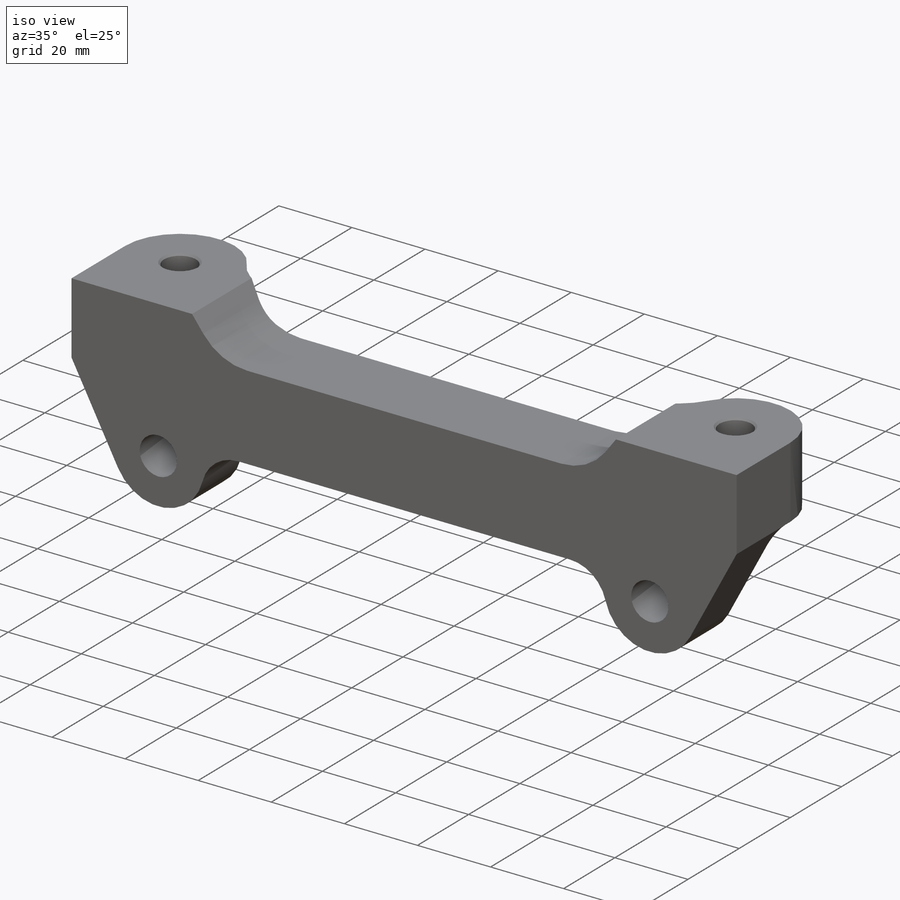
[diagram: iso view]
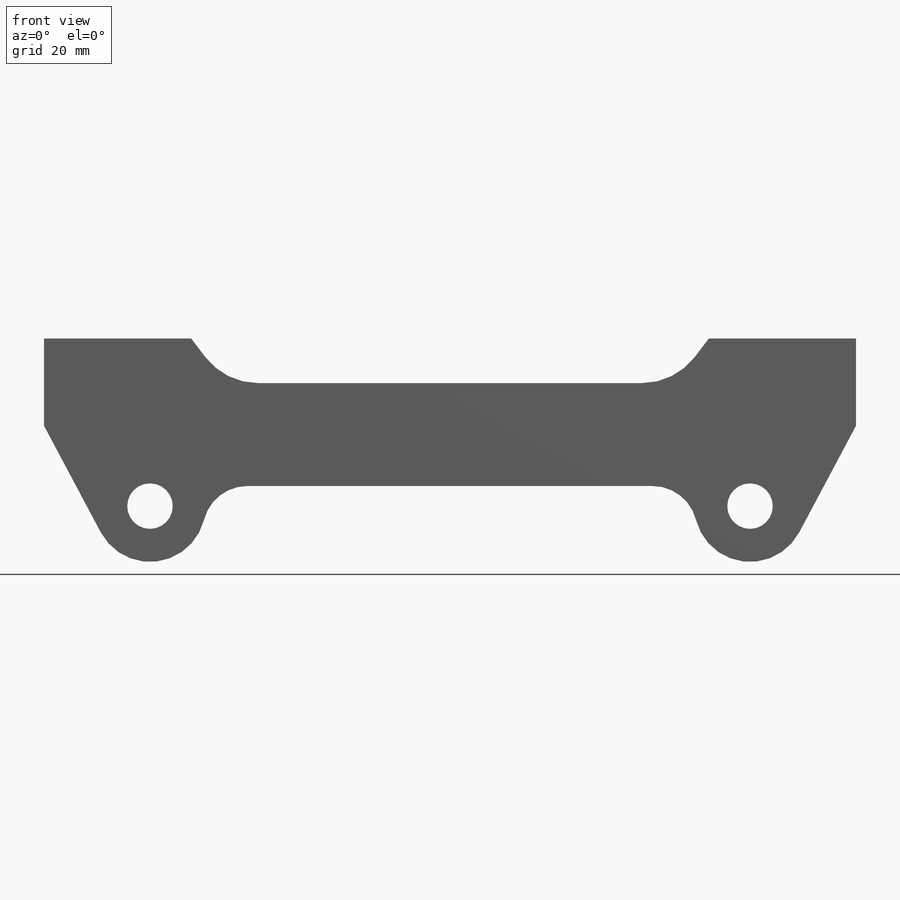
[diagram: front view]
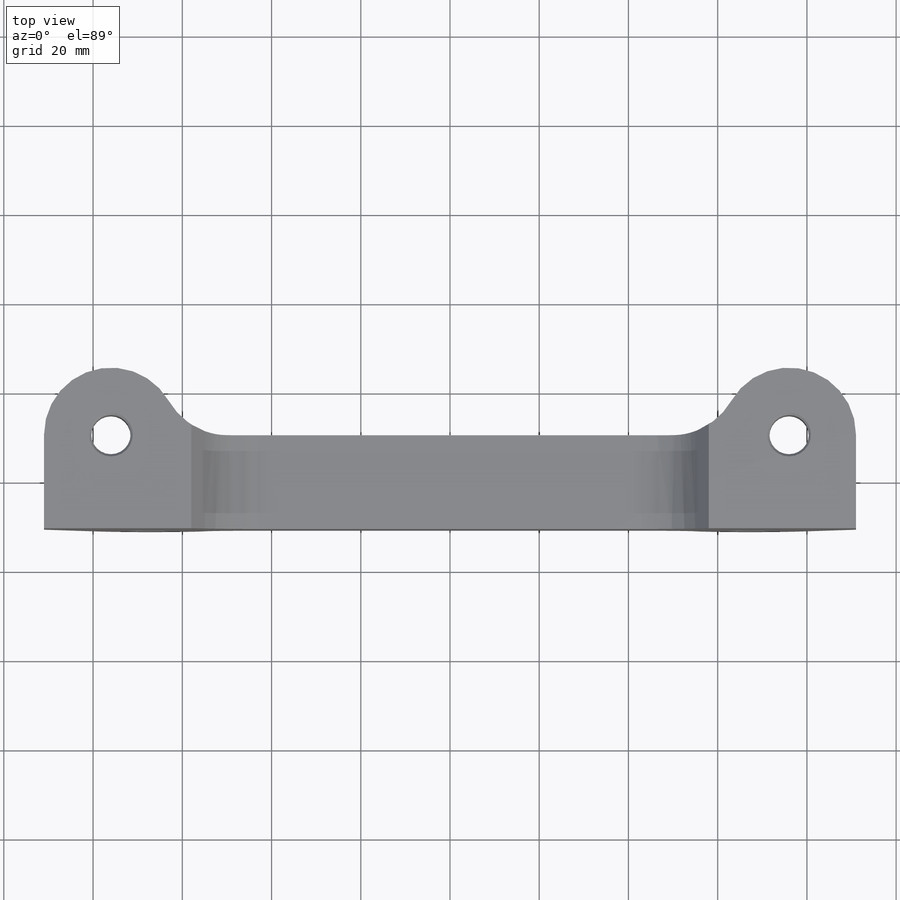
[diagram: top view]
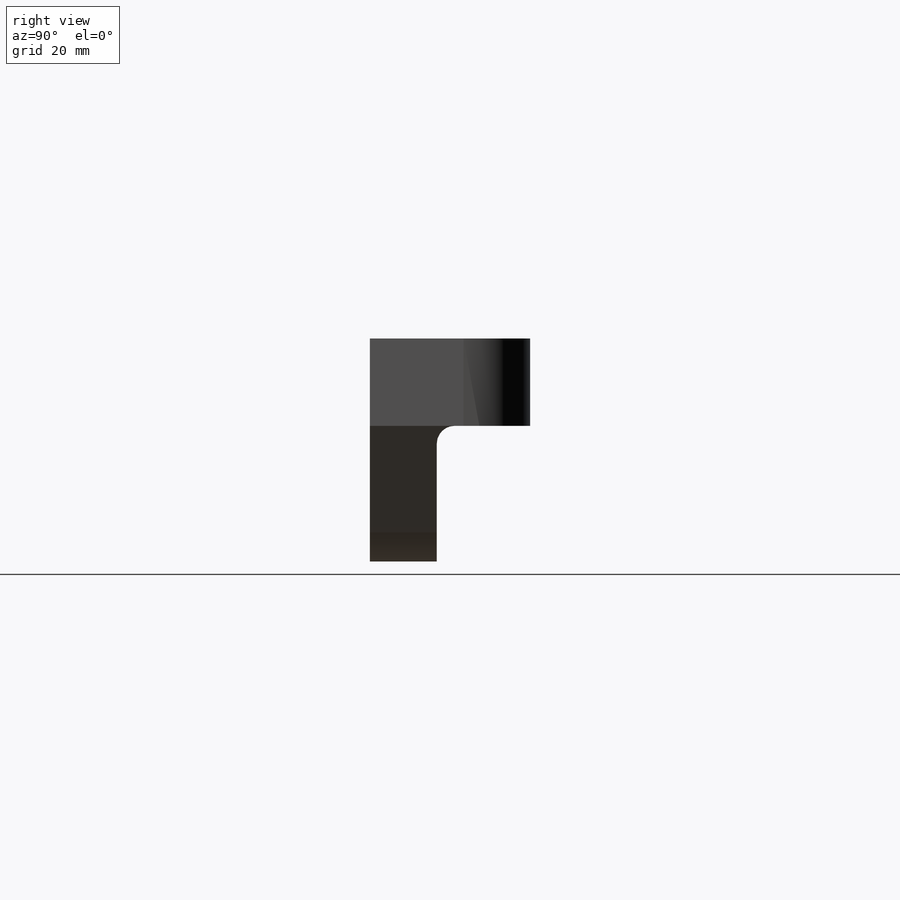
[diagram: right view]
SOLIDWORKS PART (.sldprt)
format: sldprt  version: not decoded by parser v0  size: 587,264 bytes
history: native  units: mm
features: sketch x6, fillet x5, extrude x3, plane x3, chamfer x2, material x1, cut_extrude x1 (+12 scaffold rows collapsed)
feature tree (33):
  scaffold x12  (default folders/planes/origin — collapsed)
  material  "6061-T6 (SS)"
  sketch  "Sketch1"  dims[c1.D1=10.2mm c1.D3=12.5mm c1.D4=12.5mm c1.D7=15.0mm c1.D13=15.0mm c1.D14=15.0mm c2.D4=12.5mm c2.D5=15.0mm c2.D3=~13.856789mm c3.D5=10.0mm c3.D2=134.5mm c4.D5=184.0mm c4.D6=67.25mm c4.D7=67.25mm c5.D5=~32.016728mm c5.D6=32.02mm c5.D7=184.0mm c5.D8=152.0mm c5.D9=76.0mm c6.D7=15.0mm c6.D5=10.0mm c6.D6=17.0mm c7.D5=12.0mm c7.D10=18.0mm c7.D11=70.0mm c7.D12=35.0mm c8.D10=~12.324751mm c8.D5=8.0mm c9.D10=~12.324751mm c9.D3=12.5mm c9.D5=110.0mm c10.D10=30.5mm]
  extrude  "Boss-Extrude1"  Depth=11mm
  sketch  "Sketch2"  dims[c1.D3=8.8mm c1.D5=8.8mm c1.D9=11.5mm c1.D10=15.0mm c1.D11=15.0mm c1.D12=10.0mm c1.D6=~323.726508mm c1.D8=11.5mm c2.D10=30.0mm c2.D6=15.0mm c2.D1=0.0mm c2.D2=~184.32503mm c3.D1=~58.21843mm c3.D2=~198.034664mm c4.D1=180.0mm c4.D2=~31.606172mm c5.D2=~0.382414deg c6.D2=~31.606172mm c6.D1=42.0mm c7.D2=152.0mm c7.D4=46.86mm c7.D6=21.0mm c7.D7=76.0mm c7.D1=21.0mm c8.D6=21.0mm c8.D8=6.0mm c8.D9=~8.116177mm c9.D8=20.0mm c9.D6=30.0mm c10.D8=15.0mm c10.D9=15.0mm c10.D10=~126.462241mm c11.D9=0.0mm]
  extrude  "Boss-Extrude2"  Depth=19.57mm
  sketch  "Sketch3"  dims[c1.D1=~16.503252mm c1.D2=10.2mm c1.D4=10.2mm c1.D5=10.2mm c2.D1=152.0mm c2.D3=~30.532089mm c2.D4=76.0mm c3.D3=46.86mm c3.D6=21.0mm c3.D7=42.0mm]
  plane  "Hub Face (11mm used for 66mm offset)"  Offset=51.5mm
  plane  "Mounting Offset"
  chamfer  "Chamfer2"  Distance=0.5mm Angle=45deg
  sketch  "Sketch4"  dims[c1.D2=30.0mm c1.D5=15.0mm c1.D6=10.2mm c1.D3=30.0mm c2.D6=30.0mm c2.D4=25.0mm c2.D2=10.2mm c2.D1=18.0mm c3.D2=18.0mm c3.D3=30.0mm c3.D4=30.0mm c3.D7=38.0mm c3.D8=~9.14876mm c4.D4=~12.862689mm c4.D1=~28.721044mm c4.D2=~5.731851mm c5.D1=~29.985185mm]
  extrude  "Boss-Extrude3"  Depth=4mm
  chamfer  "Chamfer3"  Distance=1mm Angle=45deg
  fillet  "Fillet6"  Radius=2.5mm
  plane  "Knuckle Mounting Face"
  fillet  "Fillet7"  Radius=2mm
  fillet  "Fillet9"  Radius=2mm
  sketch  "Sketch6"  dims[c1.D6=15.0mm c1.D1=152.0mm c1.D2=76.0mm c1.D3=18.0mm c1.D4=18.0mm c1.D5=10.0mm c2.D6=10.0mm c2.D5=10.0mm]
  cut_extrude  "Cut-Extrude2"  Depth=10mm
  fillet  "Fillet12"  Radius=5mm
  sketch  "Sketch7"  dims[c1.D1=4.0mm c1.D2=4.0mm c2.D1=2.0mm c2.D2=0.0mm c3.D1=~31.504862mm c4.D1=~0.462477deg c5.D1=~31.504862mm c6.D1=~0.462477deg c7.D1=2.0mm c8.D1=90.0deg c9.D1=5.0mm c9.D2=~4.587476mm]
  fillet  "Fillet13"  Radius=4mm
decode coverage: 17 of 17 modeling features carry decoded parameters
note: ~ marks probable driven/reference dimensions
note: suppression state not decoded; provenance and decode notes live in map.json
